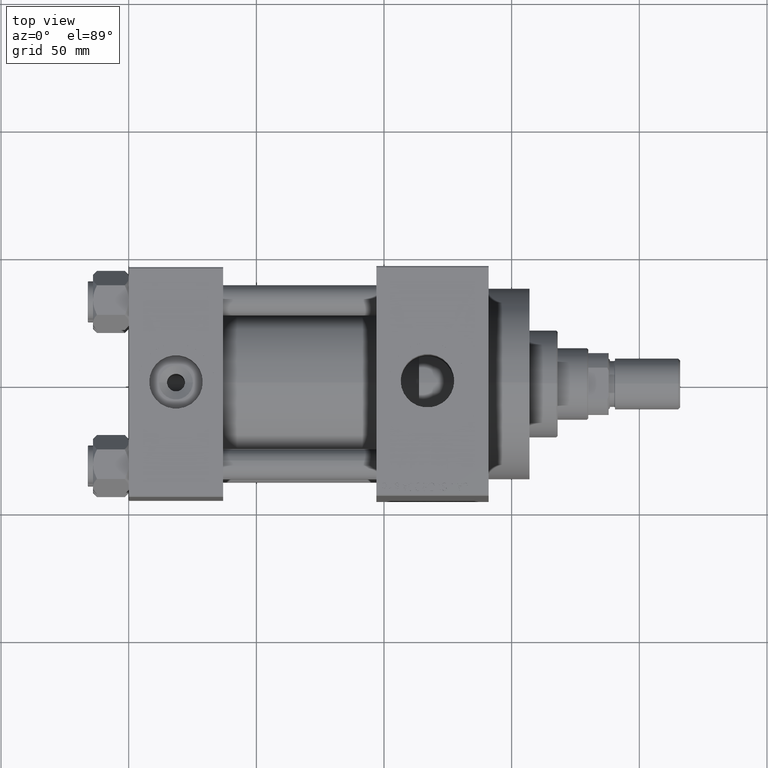
[diagram: clean part render]
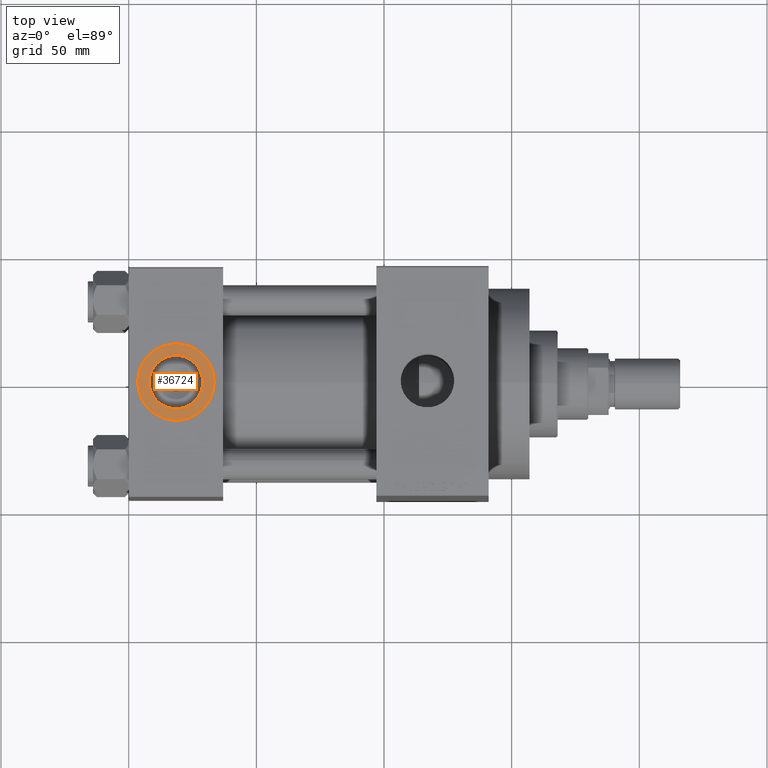
[diagram: same view with one face highlighted and labeled with its STEP entity id]
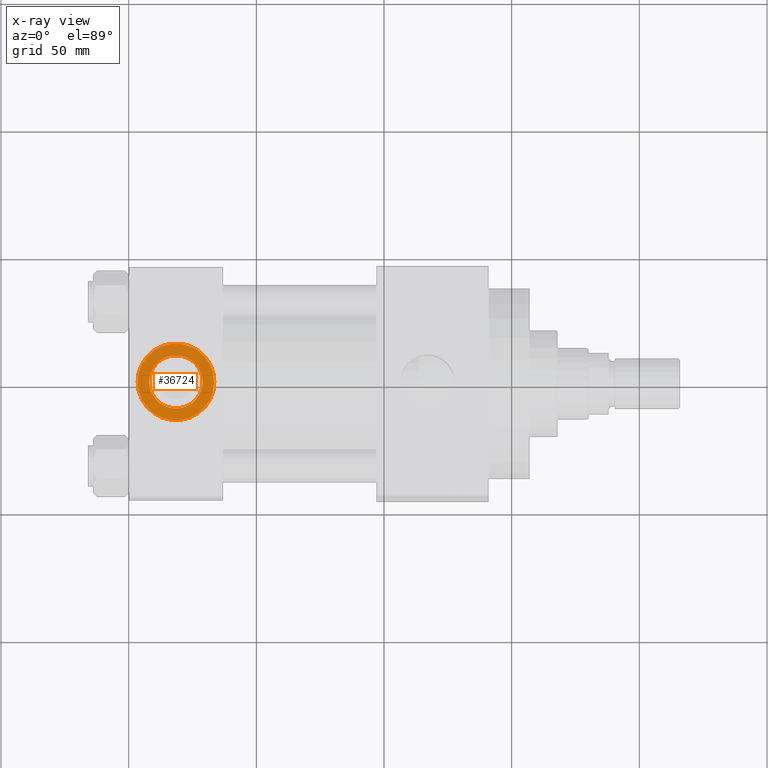
[diagram: x-ray of the same camera — body ghosted, the highlighted face saturated]
A machine part, top view. The second image highlights one B-rep face of the part: STEP entity #36724.
The next image is the same camera in x-ray: the body ghosted, the highlighted face saturated — about 0% of this face is hidden behind the body in this view.
In plain terms, the highlighted planar face has unit normal (0, 0, 1).
Its self-contained STEP definition (entity closure, byte-faithful):
#1049 = VERTEX_POINT ( 'NONE', #29884 ) ;
#1411 = DIRECTION ( 'NONE',  ( 1.000000000000000000, 0.000000000000000000, 0.000000000000000000 ) ) ;
#3119 = VERTEX_POINT ( 'NONE', #19464 ) ;
#7401 = ORIENTED_EDGE ( 'NONE', *, *, #21173, .F. ) ;
#7936 = CARTESIAN_POINT ( 'NONE',  ( 18.50000000000000000, -8.673617379884038628E-15, 44.80000000000000426 ) ) ;
#8413 = CARTESIAN_POINT ( 'NONE',  ( 18.50000000000000000, -8.673617379884038628E-15, 44.80000000000000426 ) ) ;
#8576 = CARTESIAN_POINT ( 'NONE',  ( 33.50000000000000000, -8.673617379884038628E-15, 44.80000000000000426 ) ) ;
#8882 = EDGE_CURVE ( 'NONE', #3119, #38164, #9284, .T. ) ;
#8898 = DIRECTION ( 'NONE',  ( 1.000000000000000000, 0.000000000000000000, 0.000000000000000000 ) ) ;
#9284 = CIRCLE ( 'NONE', #14681, 10.48000000000000043 ) ;
#9706 = EDGE_CURVE ( 'NONE', #1049, #29731, #18569, .T. ) ;
#10905 = EDGE_CURVE ( 'NONE', #29731, #1049, #33863, .T. ) ;
#10912 = DIRECTION ( 'NONE',  ( 0.000000000000000000, 0.000000000000000000, 1.000000000000000000 ) ) ;
#11552 = AXIS2_PLACEMENT_3D ( 'NONE', #14188, #47428, #43811 ) ;
#14128 = EDGE_LOOP ( 'NONE', ( #16715, #7401 ) ) ;
#14188 = CARTESIAN_POINT ( 'NONE',  ( 18.50000000000000000, -8.673617379884038628E-15, 44.80000000000000426 ) ) ;
#14681 = AXIS2_PLACEMENT_3D ( 'NONE', #7936, #44573, #1411 ) ;
#14743 = AXIS2_PLACEMENT_3D ( 'NONE', #34839, #41829, #34357 ) ;
#15003 = CARTESIAN_POINT ( 'NONE',  ( 18.50000000000000000, -8.673617379884038628E-15, 44.80000000000000426 ) ) ;
#15658 = DIRECTION ( 'NONE',  ( 0.000000000000000000, 0.000000000000000000, 1.000000000000000000 ) ) ;
#15806 = FACE_OUTER_BOUND ( 'NONE', #39292, .T. ) ;
#16639 = CIRCLE ( 'NONE', #46662, 10.48000000000000043 ) ;
#16715 = ORIENTED_EDGE ( 'NONE', *, *, #8882, .F. ) ;
#18569 = CIRCLE ( 'NONE', #36234, 15.00000000000000355 ) ;
#19464 = CARTESIAN_POINT ( 'NONE',  ( 28.98000000000000043, -8.673617379884038628E-15, 44.80000000000000426 ) ) ;
#19903 = PLANE ( 'NONE',  #14743 ) ;
#21173 = EDGE_CURVE ( 'NONE', #38164, #3119, #16639, .T. ) ;
#25584 = DIRECTION ( 'NONE',  ( 1.000000000000000000, 0.000000000000000000, 0.000000000000000000 ) ) ;
#29731 = VERTEX_POINT ( 'NONE', #8576 ) ;
#29884 = CARTESIAN_POINT ( 'NONE',  ( 3.499999999999997780, -6.836647181163008250E-15, 44.80000000000000426 ) ) ;
#30658 = CARTESIAN_POINT ( 'NONE',  ( 8.019999999999999574, -7.390187534377611561E-15, 44.80000000000000426 ) ) ;
#31547 = ORIENTED_EDGE ( 'NONE', *, *, #10905, .T. ) ;
#33863 = CIRCLE ( 'NONE', #11552, 15.00000000000000355 ) ;
#34357 = DIRECTION ( 'NONE',  ( 1.000000000000000000, 0.000000000000000000, -0.000000000000000000 ) ) ;
#34839 = CARTESIAN_POINT ( 'NONE',  ( 18.50000000000000000, -8.673617379884038628E-15, 44.80000000000000426 ) ) ;
#36234 = AXIS2_PLACEMENT_3D ( 'NONE', #8413, #15658, #8898 ) ;
#36724 = ADVANCED_FACE ( 'NONE', ( #45692, #15806 ), #19903, .T. ) ;
#38164 = VERTEX_POINT ( 'NONE', #30658 ) ;
#39292 = EDGE_LOOP ( 'NONE', ( #31547, #43905 ) ) ;
#41829 = DIRECTION ( 'NONE',  ( 0.000000000000000000, 0.000000000000000000, 1.000000000000000000 ) ) ;
#43811 = DIRECTION ( 'NONE',  ( 1.000000000000000000, 0.000000000000000000, 0.000000000000000000 ) ) ;
#43905 = ORIENTED_EDGE ( 'NONE', *, *, #9706, .T. ) ;
#44573 = DIRECTION ( 'NONE',  ( 0.000000000000000000, 0.000000000000000000, 1.000000000000000000 ) ) ;
#45692 = FACE_BOUND ( 'NONE', #14128, .T. ) ;
#46662 = AXIS2_PLACEMENT_3D ( 'NONE', #15003, #10912, #25584 ) ;
#47428 = DIRECTION ( 'NONE',  ( 0.000000000000000000, 0.000000000000000000, 1.000000000000000000 ) ) ;